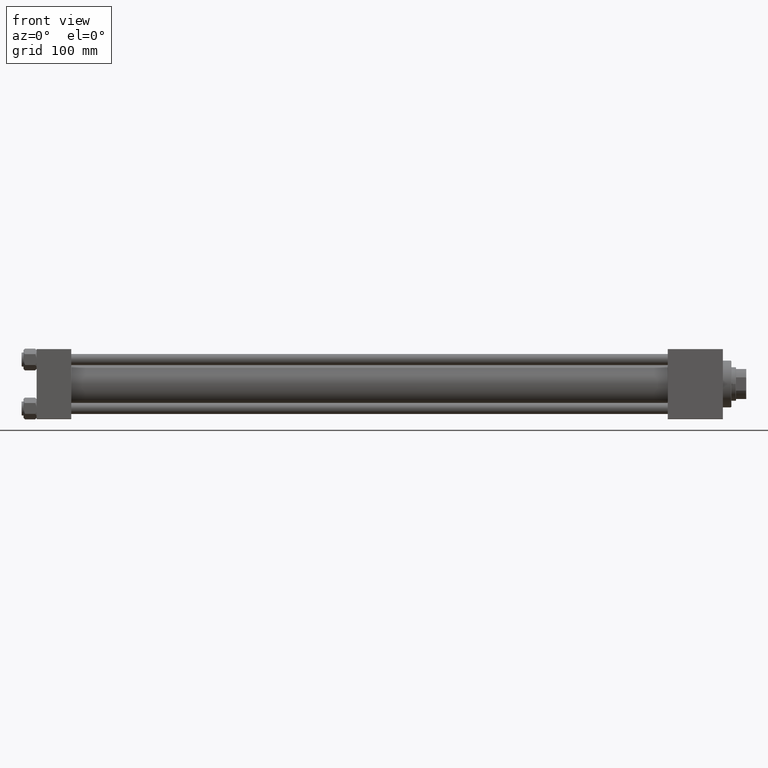
[diagram: clean part render]
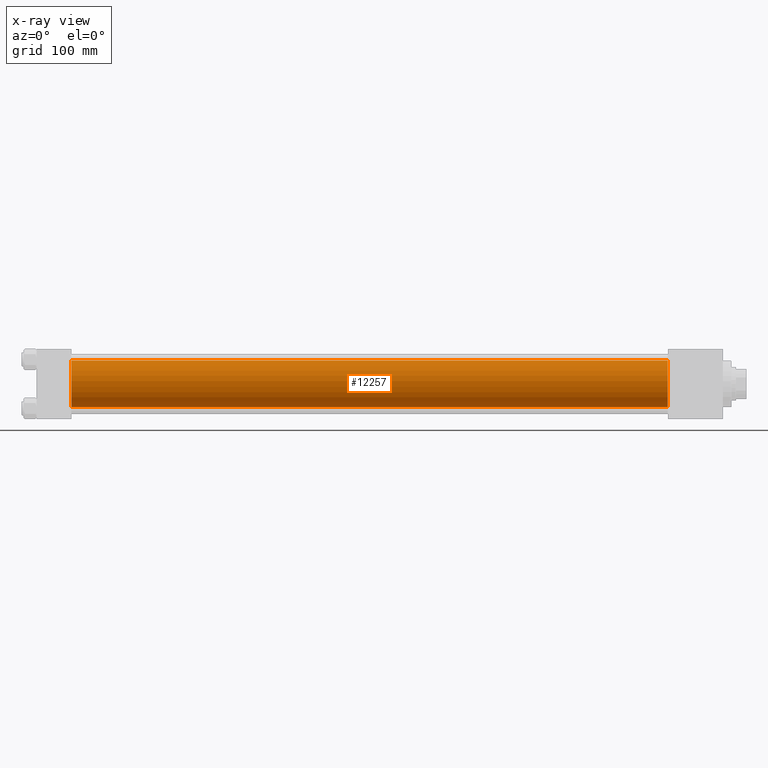
[diagram: x-ray — body ghosted, one internal face saturated and labeled with its STEP entity id]
A machine part, front view, then the same camera in x-ray: the body is ghosted and one INTERNAL B-rep face — a face not visible from any outside direction — is saturated and labeled: STEP entity #12257.
In plain terms, the highlighted cylindrical surface (edge-blend (fillet) strip) has radius 25 mm, axis along (-1, -0, -0).
Its self-contained STEP definition (entity closure, byte-faithful):
#811 = FACE_OUTER_BOUND ( 'NONE', #8161, .T. ) ;
#3451 = DIRECTION ( 'NONE',  ( 1.000000000000000000, 0.000000000000000000, 0.000000000000000000 ) ) ;
#5377 = DIRECTION ( 'NONE',  ( 1.000000000000000000, 0.000000000000000000, 0.000000000000000000 ) ) ;
#5960 = EDGE_CURVE ( 'NONE', #30012, #38829, #40348, .T. ) ;
#7706 = DIRECTION ( 'NONE',  ( 0.000000000000000000, 0.000000000000000000, 1.000000000000000000 ) ) ;
#8161 = EDGE_LOOP ( 'NONE', ( #45592, #14220, #31593, #44598 ) ) ;
#8495 = CARTESIAN_POINT ( 'NONE',  ( 675.0000000000000000, -2.602085213965210642E-15, 25.00000000000000000 ) ) ;
#11208 = VERTEX_POINT ( 'NONE', #39237 ) ;
#11913 = DIRECTION ( 'NONE',  ( -1.000000000000000000, -0.000000000000000000, -0.000000000000000000 ) ) ;
#11945 = VECTOR ( 'NONE', #36278, 1000.000000000000000 ) ;
#12257 = ADVANCED_FACE ( 'NONE', ( #811 ), #35726, .F. ) ;
#14220 = ORIENTED_EDGE ( 'NONE', *, *, #5960, .T. ) ;
#15146 = DIRECTION ( 'NONE',  ( 0.000000000000000000, 0.000000000000000000, -1.000000000000000000 ) ) ;
#15964 = CARTESIAN_POINT ( 'NONE',  ( 675.0000000000000000, -2.602085213965210642E-15, 25.00000000000000000 ) ) ;
#16462 = LINE ( 'NONE', #15964, #34996 ) ;
#17395 = AXIS2_PLACEMENT_3D ( 'NONE', #22536, #3451, #15146 ) ;
#17813 = CARTESIAN_POINT ( 'NONE',  ( 37.00000000000000000, 4.595317839031724996E-16, -25.00000000000000000 ) ) ;
#17971 = EDGE_CURVE ( 'NONE', #20551, #11208, #16462, .T. ) ;
#20551 = VERTEX_POINT ( 'NONE', #8495 ) ;
#22536 = CARTESIAN_POINT ( 'NONE',  ( 37.00000000000000000, -2.602085213965210642E-15, 0.000000000000000000 ) ) ;
#25216 = DIRECTION ( 'NONE',  ( 0.000000000000000000, 0.000000000000000000, -1.000000000000000000 ) ) ;
#29044 = CARTESIAN_POINT ( 'NONE',  ( 675.0000000000000000, -2.602085213965210642E-15, 0.000000000000000000 ) ) ;
#30012 = VERTEX_POINT ( 'NONE', #33706 ) ;
#31593 = ORIENTED_EDGE ( 'NONE', *, *, #34412, .F. ) ;
#33706 = CARTESIAN_POINT ( 'NONE',  ( 675.0000000000000000, 4.595317839031724996E-16, -25.00000000000000000 ) ) ;
#34412 = EDGE_CURVE ( 'NONE', #11208, #38829, #44390, .T. ) ;
#34996 = VECTOR ( 'NONE', #11913, 1000.000000000000000 ) ;
#35726 = CYLINDRICAL_SURFACE ( 'NONE', #44683, 25.00000000000000000 ) ;
#35976 = DIRECTION ( 'NONE',  ( -1.000000000000000000, -0.000000000000000000, -0.000000000000000000 ) ) ;
#36278 = DIRECTION ( 'NONE',  ( -1.000000000000000000, -0.000000000000000000, -0.000000000000000000 ) ) ;
#38829 = VERTEX_POINT ( 'NONE', #17813 ) ;
#39237 = CARTESIAN_POINT ( 'NONE',  ( 37.00000000000000000, -2.602085213965210642E-15, 25.00000000000000000 ) ) ;
#39464 = AXIS2_PLACEMENT_3D ( 'NONE', #29044, #5377, #25216 ) ;
#40300 = CIRCLE ( 'NONE', #39464, 25.00000000000000000 ) ;
#40348 = LINE ( 'NONE', #44172, #11945 ) ;
#43378 = CARTESIAN_POINT ( 'NONE',  ( 675.0000000000000000, -2.602085213965210642E-15, 0.000000000000000000 ) ) ;
#44172 = CARTESIAN_POINT ( 'NONE',  ( 675.0000000000000000, 4.595317839031724996E-16, -25.00000000000000000 ) ) ;
#44390 = CIRCLE ( 'NONE', #17395, 25.00000000000000000 ) ;
#44598 = ORIENTED_EDGE ( 'NONE', *, *, #17971, .F. ) ;
#44683 = AXIS2_PLACEMENT_3D ( 'NONE', #43378, #35976, #7706 ) ;
#45592 = ORIENTED_EDGE ( 'NONE', *, *, #50105, .T. ) ;
#50105 = EDGE_CURVE ( 'NONE', #20551, #30012, #40300, .T. ) ;